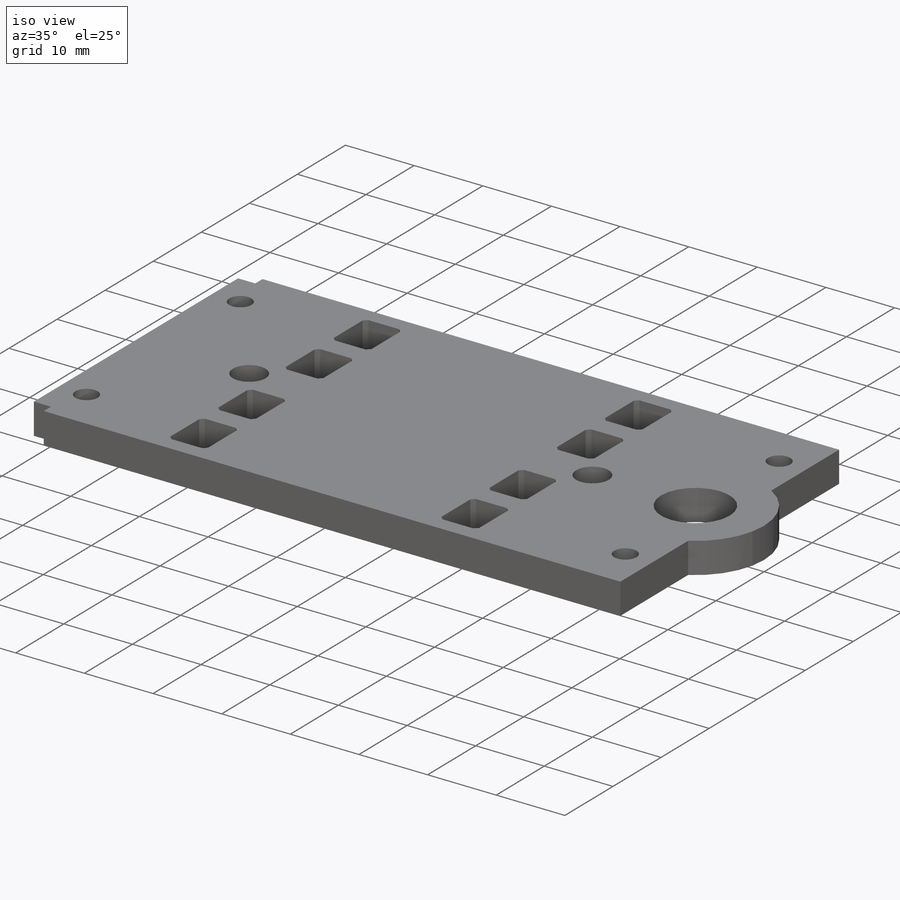
[diagram: iso view]
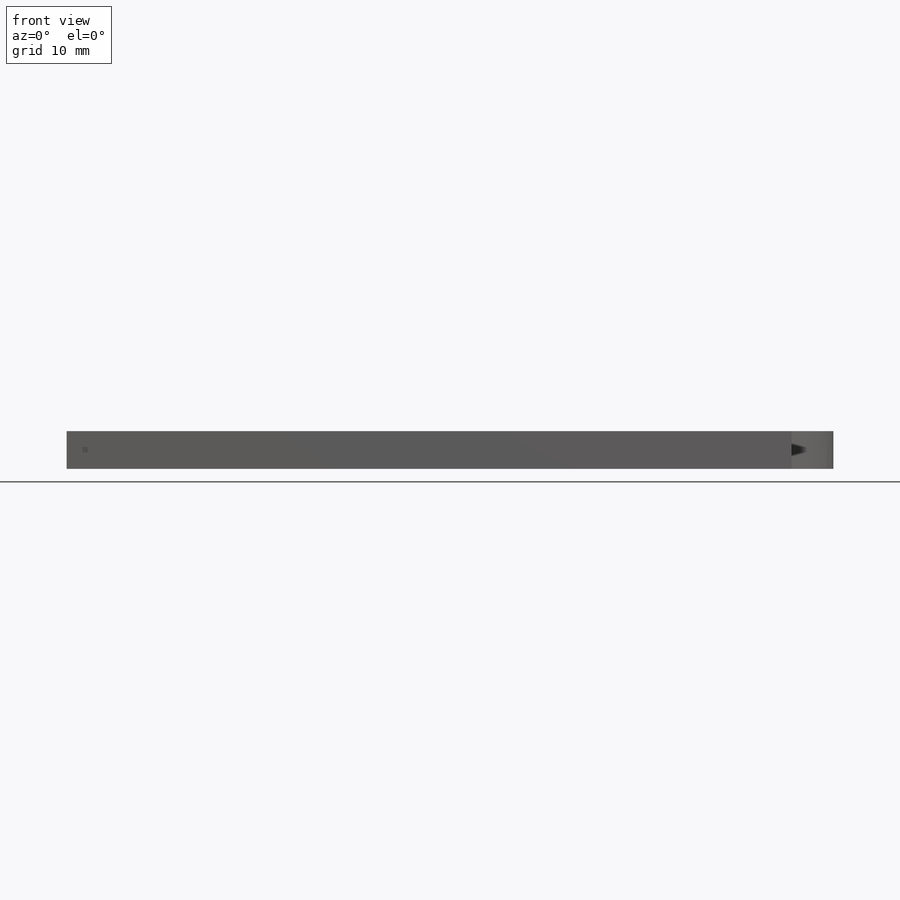
[diagram: front view]
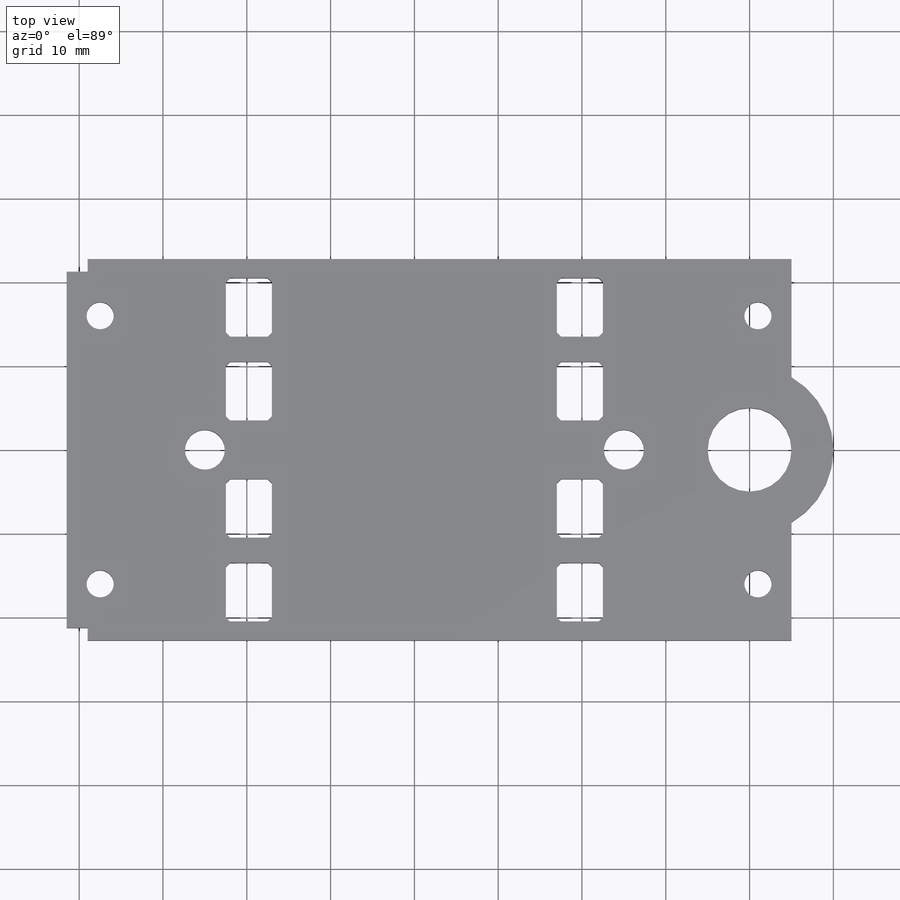
[diagram: top view]
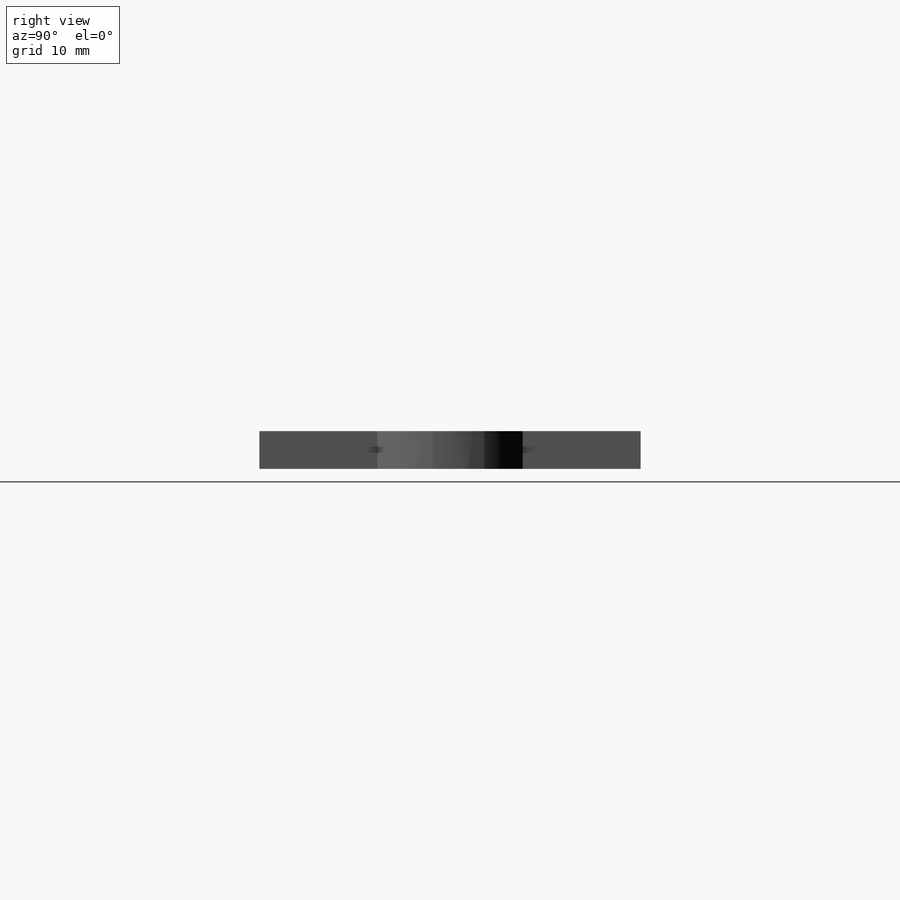
[diagram: right view]
SOLIDWORKS PART (.sldprt)
format: sldprt  version: not decoded by parser v0  size: 527,872 bytes
history: native  units: mm
features: sketch x5, cut_extrude x3, extrude x2, material x1, mirror x1, chamfer x1 (+16 scaffold rows collapsed)
feature tree (29):
  scaffold x16  (default folders/planes/origin — collapsed)
  material  "Material <not specified>"
  sketch  "Sketch2"  dims[c1.D1=45.0mm c1.D2=90.0mm c1.D3=45.0mm c2.D1=22.75mm c2.D4=22.75mm c2.D2=41.5mm]
  extrude  "Boss-Extrude1"  Depth=4.5mm
  sketch  "Sketch3"  dims[c1.D5=3.25mm c1.D6=4.7625mm c1.D1=4.0mm c1.D2=6.0mm c1.D3=4.0mm c1.D4=6.0mm c1.D7=50.0mm c2.D1=16.0mm c2.D2=37.5mm c2.D3=41.0mm]
  cut_extrude  "Cut-Extrude1"  [1 undecoded]
  sketch  "Sketch4"  dims[D1=17.0mm D2=22.5mm D3=7.0mm D4=17.0mm D5=7.0mm D6=7.0mm]
  cut_extrude  "Cut-Extrude2"  [1 undecoded]
  mirror  "Mirror1"
  chamfer  "Chamfer1"  Distance=0.5mm Angle=45deg
  sketch  "Sketch5"  dims[D2=20.0mm D1=40.0mm]
  extrude  "Boss-Extrude2"  [1 undecoded]
  sketch  "Sketch6"  dims[D1=10.0mm D2=2.5mm D3=1.5mm]
  cut_extrude  "Cut-Extrude3"  [1 undecoded]
decode coverage: 7 of 12 modeling features carry decoded parameters
note: 4 parameter values undecoded
summary: no parameter record found for 4 features
note: suppression state not decoded; provenance and decode notes live in map.json
